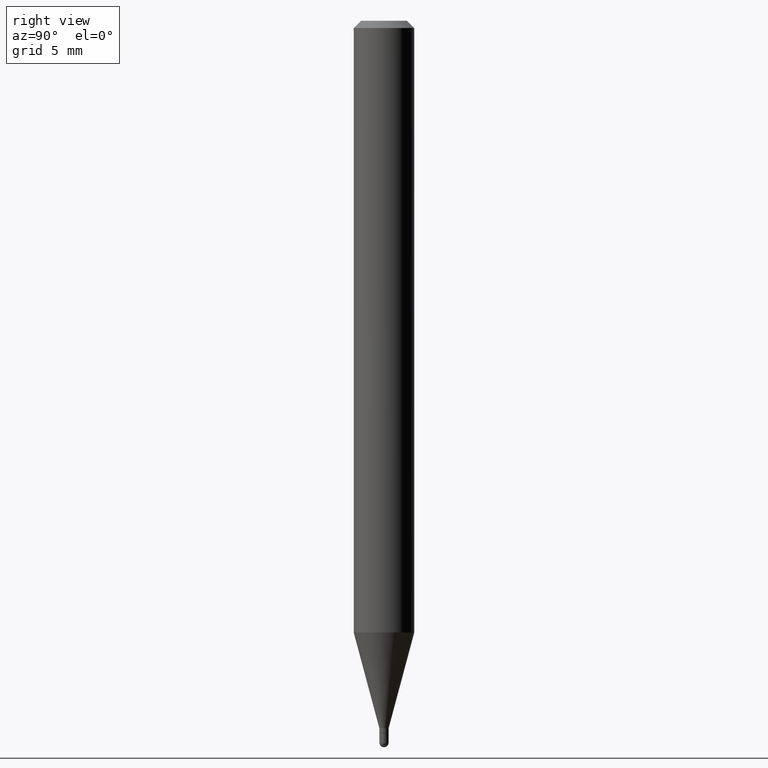
[diagram: clean part render]
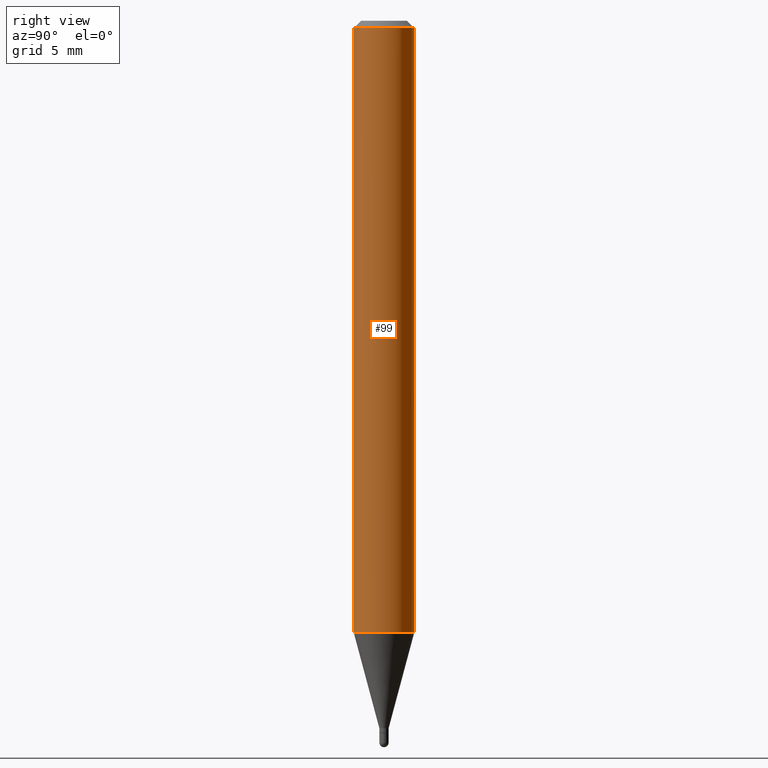
[diagram: same view with one face highlighted and labeled with its STEP entity id]
A machine part, right view. The second image highlights one B-rep face of the part: STEP entity #99.
In plain terms, the highlighted cylindrical surface (edge-blend (fillet) strip) has radius 1.5875 mm, axis along (-0, 0, 1).
Its self-contained STEP definition (entity closure, byte-faithful):
#13 = LINE ( 'NONE', #163, #473 ) ;
#26 = VERTEX_POINT ( 'NONE', #263 ) ;
#28 = DIRECTION ( 'NONE',  ( -6.982962677686265922E-15, -1.000000000000000000, 3.483106191921935554E-15 ) ) ;
#77 = CIRCLE ( 'NONE', #198, 0.06250000000000000000 ) ;
#92 = EDGE_CURVE ( 'NONE', #466, #235, #13, .T. ) ;
#99 = ADVANCED_FACE ( 'NONE', ( #494 ), #281, .T. ) ;
#112 = ORIENTED_EDGE ( 'NONE', *, *, #92, .T. ) ;
#142 = DIRECTION ( 'NONE',  ( -2.445482984812640302E-29, 3.491461034241563044E-15, 1.000000000000000000 ) ) ;
#145 = CARTESIAN_POINT ( 'NONE',  ( 0.000000000000000000, 0.000000000000000000, 0.000000000000000000 ) ) ;
#163 = CARTESIAN_POINT ( 'NONE',  ( 4.440892098500625669E-16, 0.06250000000000000000, -2.182163146400976903E-16 ) ) ;
#167 = EDGE_CURVE ( 'NONE', #449, #235, #474, .T. ) ;
#191 = EDGE_LOOP ( 'NONE', ( #310, #112, #489, #218 ) ) ;
#198 = AXIS2_PLACEMENT_3D ( 'NONE', #350, #142, #476 ) ;
#200 = LINE ( 'NONE', #326, #285 ) ;
#205 = DIRECTION ( 'NONE',  ( -6.982962677686265922E-15, -1.000000000000000000, 3.491461034241563044E-15 ) ) ;
#218 = ORIENTED_EDGE ( 'NONE', *, *, #298, .F. ) ;
#235 = VERTEX_POINT ( 'NONE', #312 ) ;
#261 = DIRECTION ( 'NONE',  ( -2.445482984812640302E-29, 3.491461034241563044E-15, 1.000000000000000000 ) ) ;
#263 = CARTESIAN_POINT ( 'NONE',  ( -4.364351673553607559E-16, -0.06250000000000441314, -1.263201307198850820 ) ) ;
#271 = CARTESIAN_POINT ( 'NONE',  ( 4.440892098500932831E-16, 0.06249999999999557992, -1.263201307198851264 ) ) ;
#281 = CYLINDRICAL_SURFACE ( 'NONE', #426, 0.06250000000000000000 ) ;
#285 = VECTOR ( 'NONE', #425, 39.37007874015748143 ) ;
#298 = EDGE_CURVE ( 'NONE', #26, #449, #200, .T. ) ;
#310 = ORIENTED_EDGE ( 'NONE', *, *, #414, .T. ) ;
#312 = CARTESIAN_POINT ( 'NONE',  ( 4.440892098500935790E-16, 0.06249999999999993755, -0.01499999999999997863 ) ) ;
#317 = AXIS2_PLACEMENT_3D ( 'NONE', #405, #480, #28 ) ;
#326 = CARTESIAN_POINT ( 'NONE',  ( -4.364351673553916201E-16, -0.06250000000000000000, 2.182163146400976903E-16 ) ) ;
#334 = DIRECTION ( 'NONE',  ( -2.445482984812640302E-29, 3.491461034241563044E-15, 1.000000000000000000 ) ) ;
#350 = CARTESIAN_POINT ( 'NONE',  ( 3.089137303147875048E-29, -4.410418142487795065E-15, -1.263201307198851042 ) ) ;
#405 = CARTESIAN_POINT ( 'NONE',  ( 3.668224477218901983E-31, -5.237191551362261588E-17, -0.01499999999999976179 ) ) ;
#414 = EDGE_CURVE ( 'NONE', #26, #466, #77, .T. ) ;
#425 = DIRECTION ( 'NONE',  ( -2.445482984812640302E-29, 3.491461034241563044E-15, 1.000000000000000000 ) ) ;
#426 = AXIS2_PLACEMENT_3D ( 'NONE', #145, #261, #205 ) ;
#447 = CARTESIAN_POINT ( 'NONE',  ( -4.364351673553912750E-16, -0.06250000000000005551, -0.01499999999999954321 ) ) ;
#449 = VERTEX_POINT ( 'NONE', #447 ) ;
#466 = VERTEX_POINT ( 'NONE', #271 ) ;
#473 = VECTOR ( 'NONE', #334, 39.37007874015748143 ) ;
#474 = CIRCLE ( 'NONE', #317, 0.06250000000000000000 ) ;
#476 = DIRECTION ( 'NONE',  ( -6.982962677686265922E-15, -1.000000000000000000, 4.370956789862821150E-15 ) ) ;
#480 = DIRECTION ( 'NONE',  ( -2.445482984812640302E-29, 3.491461034241563044E-15, 1.000000000000000000 ) ) ;
#489 = ORIENTED_EDGE ( 'NONE', *, *, #167, .F. ) ;
#494 = FACE_OUTER_BOUND ( 'NONE', #191, .T. ) ;